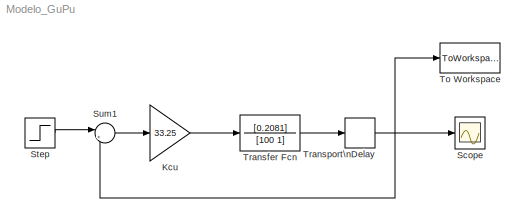
MODEL Modelo_GuPu
KIND model
BLOCK [Gain] Kcu
  Gain = 33.25
  OutDataTypeStr = Inherit: Inherit via internal rule
  ParamDataTypeStr = Inherit: Inherit via internal rule
  SID = 1
  SaturateOnIntegerOverflow = off
BLOCK [Scope] Scope
  DataFormat = StructureWithTime
  Floating = off
  LimitDataPoints = off
  NumInputPorts = 1
  Ports = [1]
  SID = 2
  SampleTime = 0
  ShowLegends = off
  YMax = 0.772498
  YMin = 0.772488
  ZoomMode = xonly
BLOCK [Step] Step
  Before = 1
  SID = 3
  SampleTime = 0
  Time = 50
BLOCK [Sum] Sum1
  IconShape = round
  Inputs = |+-
  Ports = [2, 1]
  SID = 4
BLOCK [ToWorkspace] To Workspace
  MaxDataPoints = inf
  Ports = [1]
  SID = 5
  SaveFormat = Structure With Time
  VariableName = Gu_Pu
BLOCK [TransferFcn] Transfer Fcn
  Denominator = [100 1]
  Numerator = [0.2081]
  SID = 6
BLOCK [TransportDelay] Transport\nDelay
  DelayTime = 25
  Ports = [1, 1]
  SID = 7
LINE Kcu:1 -> Transfer Fcn:1
LINE Step:1 -> Sum1:1
LINE Sum1:1 -> Kcu:1
LINE Transfer Fcn:1 -> Transport\nDelay:1
NET Transport\nDelay:1 -> Scope:1, Sum1:2, To Workspace:1
note: NET lines group one-source signal fan-out (src -> all destinations, sorted); 1:1 wires keep LINE
